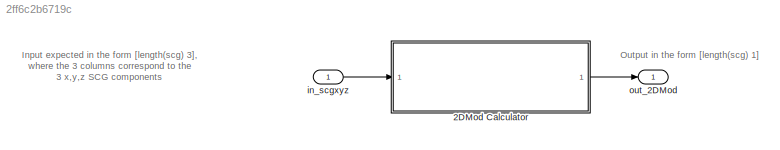
MODEL slx_2ff6c2b6719c
KIND model
CONFIG AbsTol = auto
CONFIG EnableMultiTasking = off
CONFIG FixedStep = 1/fs
CONFIG MaxStep = 1/fs
CONFIG MinStep = auto
CONFIG RelTol = 1e-3
CONFIG SampleTimeConstraint = Unconstrained
CONFIG Solver = FixedStepDiscrete
CONFIG SolverName = FixedStepDiscrete
CONFIG StartTime = 0.0
CONFIG StopTime = param_sim_time
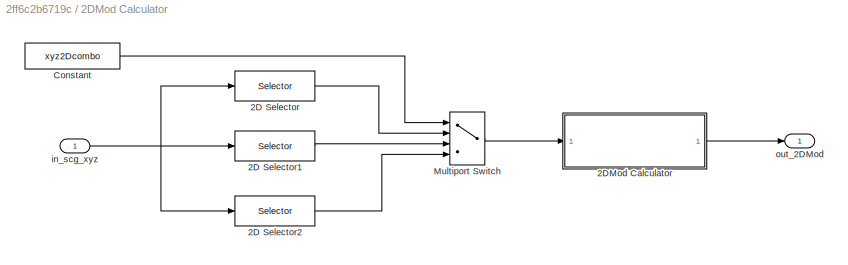
BLOCK [SubSystem] 2DMod Calculator
  Ports = [1, 1]
  RequestExecContextInheritance = off
BLOCK [Selector] 2DMod Calculator/2D Selector
  IndexOptions = Select all,Index vector (dialog)
  Indices = [1:min(analyses.ecg.RR)],[1 2]
  NumberOfDimensions = 2
  OutputSizes = 1,1
  Ports = [1, 1]
BLOCK [Selector] 2DMod Calculator/2D Selector1
  IndexOptions = Select all,Index vector (dialog)
  Indices = [1:min(analyses.ecg.RR)],[2 3]
  NumberOfDimensions = 2
  OutputSizes = 1,1
  Ports = [1, 1]
BLOCK [Selector] 2DMod Calculator/2D Selector2
  IndexOptions = Select all,Index vector (dialog)
  Indices = [1:min(analyses.ecg.RR)],[1 3]
  NumberOfDimensions = 2
  OutputSizes = 1,1
  Ports = [1, 1]
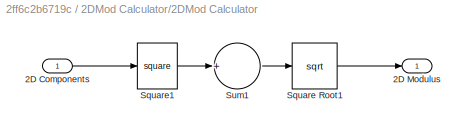
BLOCK [SubSystem] 2DMod Calculator/2DMod Calculator
  Ports = [1, 1]
  RequestExecContextInheritance = off
BLOCK [Inport] 2DMod Calculator/2DMod Calculator/2D Components
  IconDisplay = Port number
BLOCK [Outport] 2DMod Calculator/2DMod Calculator/2D Modulus
  IconDisplay = Port number
BLOCK [Sqrt] 2DMod Calculator/2DMod Calculator/Square Root1
BLOCK [Math] 2DMod Calculator/2DMod Calculator/Square1
  Operator = square
  Ports = [1, 1]
BLOCK [Sum] 2DMod Calculator/2DMod Calculator/Sum1
  CollapseDim = 2
  CollapseMode = Specified dimension
  InputSameDT = off
  Inputs = +
  OutDataTypeStr = Inherit: Inherit via internal rule
  Ports = [1, 1]
  SaturateOnIntegerOverflow = off
BLOCK [Constant] 2DMod Calculator/Constant
  Value = xyz2Dcombo
BLOCK [MultiPortSwitch] 2DMod Calculator/Multiport Switch
  InputSameDT = off
  Ports = [4, 1]
  SaturateOnIntegerOverflow = off
BLOCK [Inport] 2DMod Calculator/in_scg_xyz
  IconDisplay = Port number
BLOCK [Outport] 2DMod Calculator/out_2DMod
  IconDisplay = Port number
BLOCK [Inport] in_scgxyz
  IconDisplay = Port number
BLOCK [Outport] out_2DMod
  IconDisplay = Port number
ANNOTATION (root): Input expected in the form [length(scg) 3], where the 3 columns correspond to the 3 x,y,z SCG components
ANNOTATION (root): Output in the form [length(scg) 1]
LINE 2DMod Calculator/2D Selector1:1 -> 2DMod Calculator/Multiport Switch:3
LINE 2DMod Calculator/2D Selector2:1 -> 2DMod Calculator/Multiport Switch:4
LINE 2DMod Calculator/2D Selector:1 -> 2DMod Calculator/Multiport Switch:2
LINE 2DMod Calculator/2DMod Calculator/2D Components:1 -> 2DMod Calculator/2DMod Calculator/Square1:1
LINE 2DMod Calculator/2DMod Calculator/Square Root1:1 -> 2DMod Calculator/2DMod Calculator/2D Modulus:1
LINE 2DMod Calculator/2DMod Calculator/Square1:1 -> 2DMod Calculator/2DMod Calculator/Sum1:1
LINE 2DMod Calculator/2DMod Calculator/Sum1:1 -> 2DMod Calculator/2DMod Calculator/Square Root1:1
LINE 2DMod Calculator/2DMod Calculator:1 -> 2DMod Calculator/out_2DMod:1
LINE 2DMod Calculator/Constant:1 -> 2DMod Calculator/Multiport Switch:1
LINE 2DMod Calculator/Multiport Switch:1 -> 2DMod Calculator/2DMod Calculator:1
NET 2DMod Calculator/in_scg_xyz:1 -> 2DMod Calculator/2D Selector1:1, 2DMod Calculator/2D Selector2:1, 2DMod Calculator/2D Selector:1
LINE 2DMod Calculator:1 -> out_2DMod:1
LINE in_scgxyz:1 -> 2DMod Calculator:1
note: NET lines group one-source signal fan-out (src -> all destinations, sorted); 1:1 wires keep LINE
